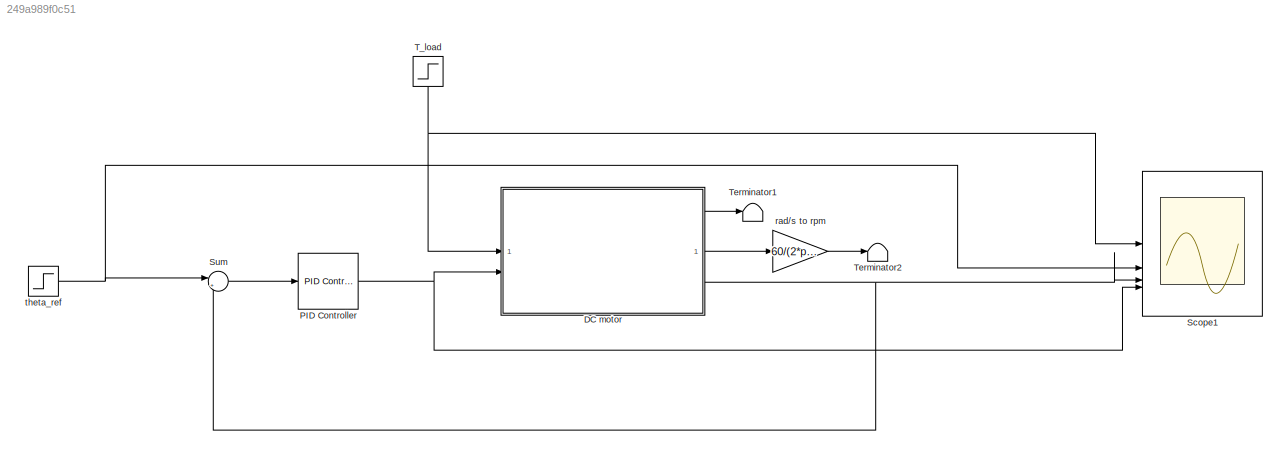
MODEL slx_249a989f0c51
KIND model
CONFIG AbsTol = auto
CONFIG EnableMultiTasking = off
CONFIG FixedStep = 0.0001
CONFIG MaxStep = auto
CONFIG MinStep = auto
CONFIG RelTol = 1e-3
CONFIG SampleTimeConstraint = Unconstrained
CONFIG SolverName = VariableStepAuto
CONFIG StartTime = 0.0
CONFIG StopTime = 10
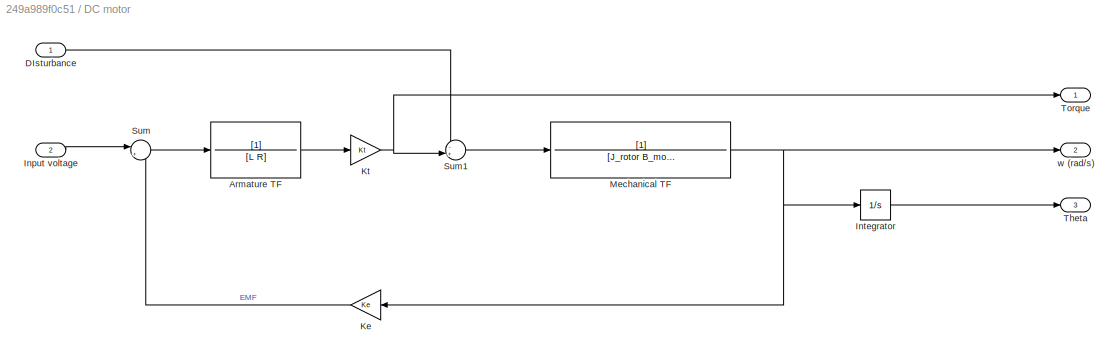
BLOCK [SubSystem] DC motor
BLOCK [TransferFcn] DC motor/Armature TF
  Denominator = [L R]
BLOCK [Inport] DC motor/DIsturbance
BLOCK [Inport] DC motor/Input voltage
  Port = 2
BLOCK [Integrator] DC motor/Integrator
BLOCK [Gain] DC motor/Ke
  Gain = Ke
BLOCK [Gain] DC motor/Kt
  Gain = Kt
BLOCK [TransferFcn] DC motor/Mechanical TF
  Denominator = [J_rotor B_motor]
BLOCK [Sum] DC motor/Sum
  Inputs = |+-
BLOCK [Sum] DC motor/Sum1
  Inputs = -+|
BLOCK [Outport] DC motor/Theta
  Port = 3
BLOCK [Outport] DC motor/Torque
BLOCK [Outport] DC motor/w (rad//s)
  Port = 2
BLOCK [Reference] PID Controller  REF=slpidlib/PID Controller
  LibrarySourceBlock = simulink/Continuous/PID Controller
  SourceBlock = slpidlib/PID Controller
  SourceType = PID 1dof
BLOCK [Scope] Scope1
  Floating = off
  NumInputPorts = 4
  ScopeSpecificationString = Simulink.scopes.TimeScopeBlockCfg('CurrentConfiguration', extmgr.ConfigurationSet(extmgr.Configuration('Core','General UI',true),extmgr.Configuration('Core','Source UI',true),extmgr.Configuration('Sources','WiredSimulink',true,'DataLoggingVariableName','ScopeData1'),extmgr.Configuration('Visuals','Time Domain',true,'SerializedDisplays',{struct('MinYLimReal','-0.125','MaxYLimReal','1.125','YLabelRe...<+3448ch>
BLOCK [Sum] Sum
  Inputs = |+-
BLOCK [Step] T_load
  After = T_disturbance
  NameLocation = left
  SampleTime = 0
  Time = 2.5
BLOCK [Terminator] Terminator1
BLOCK [Terminator] Terminator2
BLOCK [Gain] rad//s to rpm
  Gain = 60/(2*pi)
BLOCK [Step] theta_ref
  After = pi
  SampleTime = 0
LINE DC motor/Armature TF:1 -> DC motor/Kt:1
LINE DC motor/DIsturbance:1 -> DC motor/Sum1:1
LINE DC motor/Input voltage:1 -> DC motor/Sum:1
LINE DC motor/Integrator:1 -> DC motor/Theta:1
LINE DC motor/Ke:1 -> DC motor/Sum:2
NET DC motor/Kt:1 -> DC motor/Sum1:2, DC motor/Torque:1
NET DC motor/Mechanical TF:1 -> DC motor/Integrator:1, DC motor/Ke:1, DC motor/w (rad//s):1
LINE DC motor/Sum1:1 -> DC motor/Mechanical TF:1
LINE DC motor/Sum:1 -> DC motor/Armature TF:1
LINE DC motor:1 -> Terminator1:1
LINE DC motor:2 -> rad//s to rpm:1
NET DC motor:3 -> Scope1:3, Sum:2
NET PID Controller:1 -> DC motor:2, Scope1:4
LINE Sum:1 -> PID Controller:1
NET T_load:1 -> DC motor:1, Scope1:1
LINE rad//s to rpm:1 -> Terminator2:1
NET theta_ref:1 -> Scope1:2, Sum:1
note: NET lines group one-source signal fan-out (src -> all destinations, sorted); 1:1 wires keep LINE
